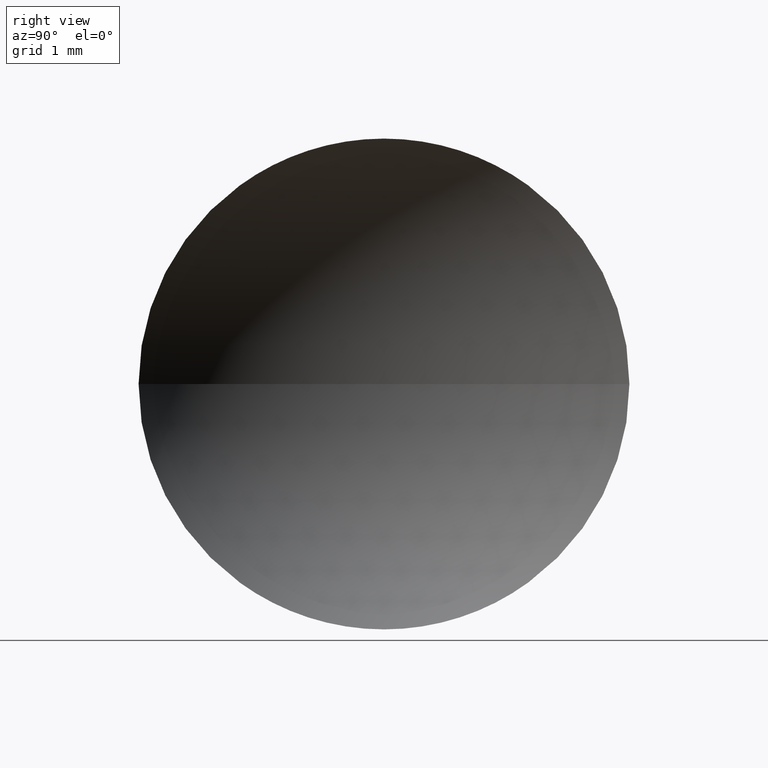
[diagram: clean part render]
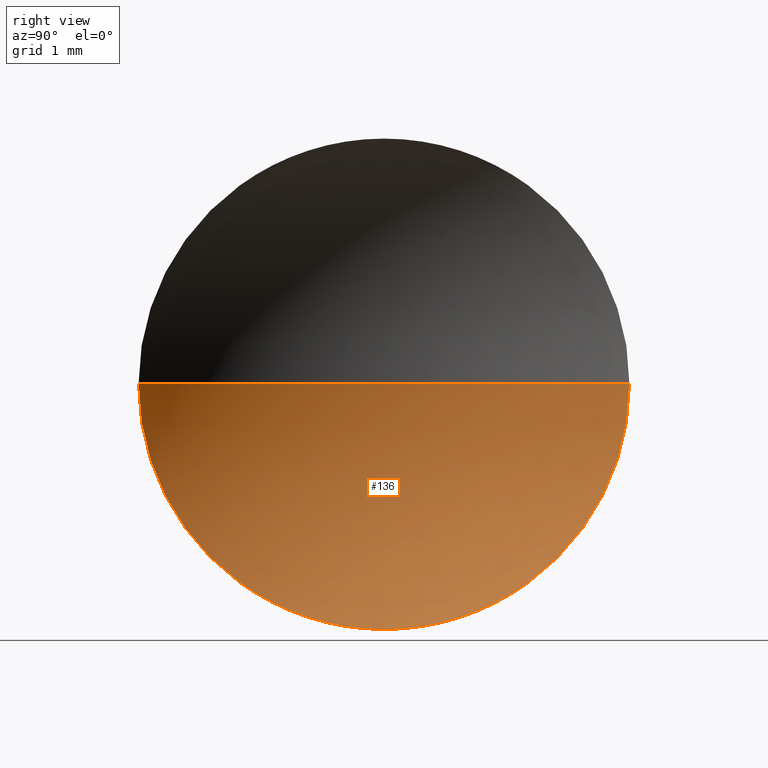
[diagram: same view with one face highlighted and labeled with its STEP entity id]
A machine part, right view. The second image highlights one B-rep face of the part: STEP entity #136.
In plain terms, the highlighted spherical surface has radius 4.1281 mm.
Its self-contained STEP definition (entity closure, byte-faithful):
#1 = EDGE_LOOP ( 'NONE', ( #78, #87, #23, #181 ) ) ;
#3 = CARTESIAN_POINT ( 'NONE',  ( 25.13218947520227800, 13.04452057459747900, 0.0000000000000000000 ) ) ;
#9 = FACE_OUTER_BOUND ( 'NONE', #1, .T. ) ;
#14 = DIRECTION ( 'NONE',  ( 0.0000000000000000000, -1.000000000000000000, -1.224646799147353000E-016 ) ) ;
#17 = CARTESIAN_POINT ( 'NONE',  ( 25.13218947520227800, 13.04452057459747900, -3.150000000000001700 ) ) ;
#23 = ORIENTED_EDGE ( 'NONE', *, *, #66, .F. ) ;
#25 = DIRECTION ( 'NONE',  ( 0.0000000000000000000, 0.0000000000000000000, -1.000000000000000000 ) ) ;
#26 = CARTESIAN_POINT ( 'NONE',  ( 27.80030591355844600, 13.04452057459747900, 0.0000000000000000000 ) ) ;
#34 = CARTESIAN_POINT ( 'NONE',  ( 27.80030591355844600, 13.04452057459747900, 0.0000000000000000000 ) ) ;
#40 = SPHERICAL_SURFACE ( 'NONE', #98, 4.128116438356165900 ) ;
#43 = DIRECTION ( 'NONE',  ( -1.000000000000000000, 0.0000000000000000000, 0.0000000000000000000 ) ) ;
#47 = VERTEX_POINT ( 'NONE', #69 ) ;
#53 = EDGE_CURVE ( 'NONE', #130, #55, #179, .T. ) ;
#55 = VERTEX_POINT ( 'NONE', #138 ) ;
#61 = CARTESIAN_POINT ( 'NONE',  ( 25.13218947520227800, 13.04452057459747900, 0.0000000000000000000 ) ) ;
#62 = DIRECTION ( 'NONE',  ( 0.0000000000000000000, 0.0000000000000000000, 1.000000000000000000 ) ) ;
#66 = EDGE_CURVE ( 'NONE', #47, #55, #162, .T. ) ;
#69 = CARTESIAN_POINT ( 'NONE',  ( 25.13218947520227800, 9.894520574597477100, 0.0000000000000000000 ) ) ;
#70 = DIRECTION ( 'NONE',  ( 0.0000000000000000000, -1.224646799147353200E-016, 1.000000000000000000 ) ) ;
#75 = EDGE_CURVE ( 'NONE', #130, #97, #95, .T. ) ;
#78 = ORIENTED_EDGE ( 'NONE', *, *, #75, .F. ) ;
#87 = ORIENTED_EDGE ( 'NONE', *, *, #53, .T. ) ;
#92 = DIRECTION ( 'NONE',  ( -1.000000000000000000, -0.0000000000000000000, -0.0000000000000000000 ) ) ;
#95 = CIRCLE ( 'NONE', #180, 3.150000000000001700 ) ;
#97 = VERTEX_POINT ( 'NONE', #17 ) ;
#98 = AXIS2_PLACEMENT_3D ( 'NONE', #34, #102, #125 ) ;
#102 = DIRECTION ( 'NONE',  ( 0.0000000000000000000, 0.0000000000000000000, 1.000000000000000000 ) ) ;
#109 = CARTESIAN_POINT ( 'NONE',  ( 27.80030591355844600, 13.04452057459747900, 0.0000000000000000000 ) ) ;
#120 = AXIS2_PLACEMENT_3D ( 'NONE', #3, #122, #62 ) ;
#122 = DIRECTION ( 'NONE',  ( -1.000000000000000000, -0.0000000000000000000, -0.0000000000000000000 ) ) ;
#123 = CARTESIAN_POINT ( 'NONE',  ( 25.13218947520227800, 16.19452057459748000, 3.857637417314164200E-016 ) ) ;
#125 = DIRECTION ( 'NONE',  ( 0.0000000000000000000, -1.000000000000000000, 0.0000000000000000000 ) ) ;
#130 = VERTEX_POINT ( 'NONE', #123 ) ;
#136 = ADVANCED_FACE ( 'NONE', ( #9 ), #40, .F. ) ;
#138 = CARTESIAN_POINT ( 'NONE',  ( 23.67218947520228100, 13.04452057459747900, 0.0000000000000000000 ) ) ;
#141 = DIRECTION ( 'NONE',  ( 0.0000000000000000000, 0.0000000000000000000, 1.000000000000000000 ) ) ;
#142 = AXIS2_PLACEMENT_3D ( 'NONE', #26, #70, #14 ) ;
#162 = CIRCLE ( 'NONE', #165, 4.128116438356165000 ) ;
#165 = AXIS2_PLACEMENT_3D ( 'NONE', #109, #25, #43 ) ;
#172 = CIRCLE ( 'NONE', #120, 3.150000000000001700 ) ;
#179 = CIRCLE ( 'NONE', #142, 4.128116438356166800 ) ;
#180 = AXIS2_PLACEMENT_3D ( 'NONE', #61, #92, #141 ) ;
#181 = ORIENTED_EDGE ( 'NONE', *, *, #183, .F. ) ;
#183 = EDGE_CURVE ( 'NONE', #97, #47, #172, .T. ) ;